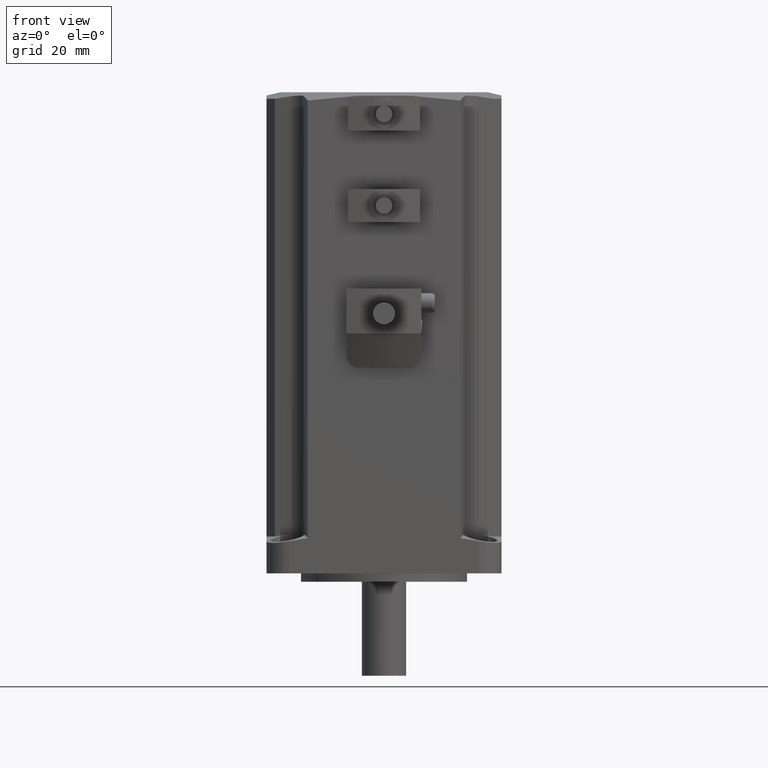
[diagram: clean part render]
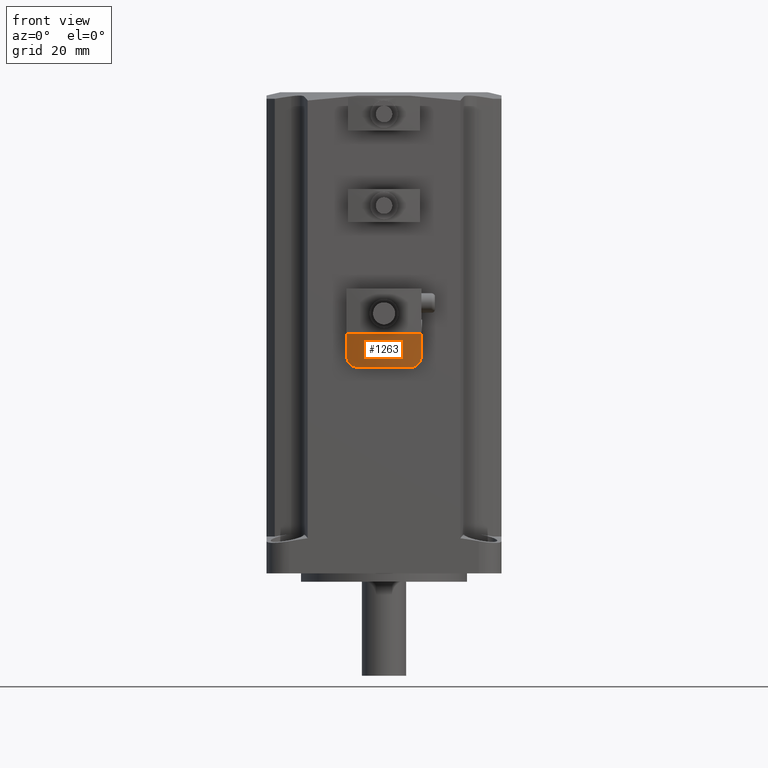
[diagram: same view with one face highlighted and labeled with its STEP entity id]
A machine part, front view. The second image highlights one B-rep face of the part: STEP entity #1263.
In plain terms, the highlighted face is a freeform B-spline surface patch.
Its self-contained STEP definition (entity closure, byte-faithful):
#14 = ORIENTED_EDGE ( 'NONE', *, *, #50, .T. ) ;
#50 = EDGE_CURVE ( 'NONE', #3740, #3743, #2198, .T. ) ;
#103 = CARTESIAN_POINT ( 'NONE',  ( -9.500000000006677325, -46.74314306314172995, 74.50000000000000000 ) ) ;
#172 = VERTEX_POINT ( 'NONE', #2562 ) ;
#205 = CARTESIAN_POINT ( 'NONE',  ( -3.136720277832197201, -47.43923013271023592, 74.50000000000001421 ) ) ;
#228 = CARTESIAN_POINT ( 'NONE',  ( 1.541976423090495042E-15, 6.499999999999964473, 86.79999999999999716 ) ) ;
#259 = CARTESIAN_POINT ( 'NONE',  ( 13.50000000000000533, -47.91274532191039270, 78.50000000000000000 ) ) ;
#287 = CARTESIAN_POINT ( 'NONE',  ( -11.56968906130091668, -46.65075489001505105, 75.06656721014613254 ) ) ;
#309 = ORIENTED_EDGE ( 'NONE', *, *, #5118, .F. ) ;
#310 = CARTESIAN_POINT ( 'NONE',  ( 13.31877589141399554, -47.36051120082587573, 77.28257795042486578 ) ) ;
#350 = CARTESIAN_POINT ( 'NONE',  ( 9.500000000007661427, -46.74314306314155942, 74.49999999999998579 ) ) ;
#354 = FACE_OUTER_BOUND ( 'NONE', #1605, .T. ) ;
#562 = CARTESIAN_POINT ( 'NONE',  ( 13.47761387306214154, -47.67920100482305656, 78.01060841932515189 ) ) ;
#614 = CARTESIAN_POINT ( 'NONE',  ( -13.50000000000001776, -47.91274532191039270, 78.50000000000001421 ) ) ;
#622 = CARTESIAN_POINT ( 'NONE',  ( -9.500000000006677325, -46.74314306314172995, 74.50000000000000000 ) ) ;
#700 = CARTESIAN_POINT ( 'NONE',  ( -12.57407285787557427, -46.86882962501639582, 75.93730667199564266 ) ) ;
#993 = CARTESIAN_POINT ( 'NONE',  ( 13.50000000000000533, -31.25635014758172758, 44.35438989262621590 ) ) ;
#1152 = CARTESIAN_POINT ( 'NONE',  ( -12.48655367297762986, -46.83800249662009207, 75.83576387625799953 ) ) ;
#1155 = VERTEX_POINT ( 'NONE', #614 ) ;
#1242 = CARTESIAN_POINT ( 'NONE',  ( 10.56516640431867415, -46.62896019339163445, 74.63502578148074917 ) ) ;
#1263 = ADVANCED_FACE ( 'NONE', ( #354 ), #2698, .F. ) ;
#1308 = CARTESIAN_POINT ( 'NONE',  ( 3.205371691824343117, -47.49807948093936005, 74.49999999999997158 ) ) ;
#1410 = DIRECTION ( 'NONE',  ( 1.000000000000000000, 0.0000000000000000000, 0.0000000000000000000 ) ) ;
#1419 = CARTESIAN_POINT ( 'NONE',  ( 13.01765801228201802, -47.08471816124341558, 76.57814321692605120 ) ) ;
#1432 = EDGE_CURVE ( 'NONE', #3743, #3658, #3634, .T. ) ;
#1437 = B_SPLINE_CURVE_WITH_KNOTS ( 'NONE', 3,
 ( #350, #3251, #4883, #1242, #2857, #4961, #2056, #2886, #2181, #5031, #4633, #1419, #3606, #310, #4920, #562, #2173, #4728 ),
 .UNSPECIFIED., .F., .F.,
 ( 4, 2, 2, 2, 2, 2, 2, 2, 4 ),
 ( 7.830427440917827224E-15, 0.0008094317095591766018, 0.001618863419110522662, 0.002428295128661868939, 0.003237726838213215216, 0.004047158547764561493, 0.004856590257315907336, 0.005666021966867254046, 0.006475453676418599890 ),
 .UNSPECIFIED. ) ;
#1539 = CARTESIAN_POINT ( 'NONE',  ( -12.81066511392275409, -46.97082892102598350, 76.25141310991959642 ) ) ;
#1605 = EDGE_LOOP ( 'NONE', ( #309, #3018, #4200, #3709, #14, #1956 ) ) ;
#1607 = CARTESIAN_POINT ( 'NONE',  ( 4.578261524350970113, -48.02174349567321343, 74.49999999999998579 ) ) ;
#1702 = CARTESIAN_POINT ( 'NONE',  ( -1.548455948475026211, -47.50094392129680188, 74.50000000000001421 ) ) ;
#1782 = VERTEX_POINT ( 'NONE', #4517 ) ;
#1806 = CARTESIAN_POINT ( 'NONE',  ( -6.320731623465448479, -47.18750853191549766, 74.50000000000001421 ) ) ;
#1838 = CARTESIAN_POINT ( 'NONE',  ( -12.00993820368009324, -46.71246265541533660, 75.37393478209116893 ) ) ;
#1864 = CARTESIAN_POINT ( 'NONE',  ( -13.47759624007209744, -47.67910057881123009, 78.01039413446812887 ) ) ;
#1955 = CARTESIAN_POINT ( 'NONE',  ( 13.50000000000000000, -51.96152580971528323, 86.80000000000001137 ) ) ;
#1956 = ORIENTED_EDGE ( 'NONE', *, *, #1432, .T. ) ;
#2056 = CARTESIAN_POINT ( 'NONE',  ( 11.56099622106447811, -46.64981213963763906, 75.06111250106494026 ) ) ;
#2173 = CARTESIAN_POINT ( 'NONE',  ( 13.49999999999999822, -47.79305665584922025, 78.25463823457454282 ) ) ;
#2181 = CARTESIAN_POINT ( 'NONE',  ( 12.20976696774798498, -46.75499739075451799, 75.54581809630548150 ) ) ;
#2198 = LINE ( 'NONE', #993, #3726 ) ;
#2250 = DIRECTION ( 'NONE',  ( -0.0000000000000000000, -0.0000000000000000000, -1.000000000000000000 ) ) ;
#2301 = B_SPLINE_CURVE_WITH_KNOTS ( 'NONE', 3,
 ( #3824, #4144, #1308, #1702, #205, #1806, #3424, #103 ),
 .UNSPECIFIED., .F., .F.,
 ( 4, 2, 2, 4 ),
 ( 0.004038723917546238780, 0.01353058257738122896, 0.01827651190729872449, 0.02302244123721622002 ),
 .UNSPECIFIED. ) ;
#2305 = EDGE_CURVE ( 'NONE', #1782, #3740, #1437, .T. ) ;
#2330 = CARTESIAN_POINT ( 'NONE',  ( 4.578261524350970113, -54.02174349567322764, 86.80000000000001137 ) ) ;
#2562 = CARTESIAN_POINT ( 'NONE',  ( -9.500000000006677325, -46.74314306314172995, 74.50000000000000000 ) ) ;
#2692 = CARTESIAN_POINT ( 'NONE',  ( -13.13277915517903160, -47.17030382233426877, 76.80648506503477790 ) ) ;
#2698 =( BOUNDED_SURFACE ( )  B_SPLINE_SURFACE ( 3, 1, ( 
 ( #4053, #1955 ),
 ( #1607, #2330 ),
 ( #3579, #3148 ),
 ( #2806, #3223 ) ),
 .UNSPECIFIED., .F., .F., .F. ) 
 B_SPLINE_SURFACE_WITH_KNOTS ( ( 4, 4 ),
 ( 2, 2 ),
 ( 0.0000000000000000000, 1.000000000000000000 ),
 ( 0.0000000000000000000, 1.000000000000000000 ),
 .UNSPECIFIED. ) 
 GEOMETRIC_REPRESENTATION_ITEM ( )  RATIONAL_B_SPLINE_SURFACE ( (
 ( 1.000000000000000000, 1.000000000000000000),
 ( 0.9829058423301690883, 0.9829058423301690883),
 ( 0.9829058423301690883, 0.9829058423301690883),
 ( 1.000000000000000000, 1.000000000000000000) ) ) 
 REPRESENTATION_ITEM ( '' )  SURFACE ( )  );
#2716 = CARTESIAN_POINT ( 'NONE',  ( -10.57450776104491652, -46.62843994265197978, 74.63735262351630695 ) ) ;
#2767 = CARTESIAN_POINT ( 'NONE',  ( -13.50000000000001776, -31.25635014758172758, 44.35438989262621590 ) ) ;
#2768 = CARTESIAN_POINT ( 'NONE',  ( -12.21145294074679022, -46.75535421508258338, 75.54726384371598158 ) ) ;
#2806 = CARTESIAN_POINT ( 'NONE',  ( -13.50000000000001599, -45.96152580971526902, 74.49999999999998579 ) ) ;
#2857 = CARTESIAN_POINT ( 'NONE',  ( 10.82867431691808413, -46.62135916853029016, 74.71745564410952056 ) ) ;
#2886 = CARTESIAN_POINT ( 'NONE',  ( 12.00661042317840455, -46.71172787161095385, 75.37101344841703110 ) ) ;
#3018 = ORIENTED_EDGE ( 'NONE', *, *, #3768, .T. ) ;
#3035 = CARTESIAN_POINT ( 'NONE',  ( -13.50000000000001776, -51.96152580971526191, 86.79999999999999716 ) ) ;
#3088 = CARTESIAN_POINT ( 'NONE',  ( -11.32865264113721260, -46.63219257540016827, 74.93222928183794807 ) ) ;
#3148 = CARTESIAN_POINT ( 'NONE',  ( -4.578261524350985212, -54.02174349567323475, 86.80000000000001137 ) ) ;
#3154 = CARTESIAN_POINT ( 'NONE',  ( -13.38716404178432740, -47.46301636351225284, 77.52483772383368432 ) ) ;
#3223 = CARTESIAN_POINT ( 'NONE',  ( -13.50000000000001599, -51.96152580971528323, 86.80000000000001137 ) ) ;
#3251 = CARTESIAN_POINT ( 'NONE',  ( 9.770133014376988001, -46.69982558361991209, 74.50000000000038369 ) ) ;
#3296 = AXIS2_PLACEMENT_3D ( 'NONE', #228, #2250, #1410 ) ;
#3415 = VECTOR ( 'NONE', #4385, 1000.000000000000114 ) ;
#3424 = CARTESIAN_POINT ( 'NONE',  ( -7.918103306390242402, -46.99680986426587026, 74.50000000000001421 ) ) ;
#3442 = B_SPLINE_CURVE_WITH_KNOTS ( 'NONE', 3,
 ( #3879, #5179, #1864, #3154, #3484, #2692, #5107, #1539, #4790, #700, #1152, #2768, #1838, #287, #3088, #4711, #2716, #4337, #5151, #622 ),
 .UNSPECIFIED., .F., .F.,
 ( 4, 2, 2, 2, 2, 2, 2, 2, 2, 4 ),
 ( 1.561251128379126385E-17, 0.0008086161761526238032, 0.001617232352305231994, 0.002425848528457840401, 0.002830156616534126174, 0.003234464704610411946, 0.004043080880762950531, 0.004851697056915489116, 0.005660313233068027701, 0.006468929409220565419 ),
 .UNSPECIFIED. ) ;
#3484 = CARTESIAN_POINT ( 'NONE',  ( -13.31848228831807823, -47.36014666968779352, 77.28169370064230748 ) ) ;
#3579 = CARTESIAN_POINT ( 'NONE',  ( -4.578261524350985212, -48.02174349567322054, 74.49999999999998579 ) ) ;
#3606 = CARTESIAN_POINT ( 'NONE',  ( 13.13303648534986579, -47.17050269656781580, 76.80701103023284304 ) ) ;
#3634 = CIRCLE ( 'NONE', #3296, 60.00000000000000000 ) ;
#3658 = VERTEX_POINT ( 'NONE', #3035 ) ;
#3709 = ORIENTED_EDGE ( 'NONE', *, *, #2305, .T. ) ;
#3726 = VECTOR ( 'NONE', #3793, 1000.000000000000114 ) ;
#3740 = VERTEX_POINT ( 'NONE', #259 ) ;
#3743 = VERTEX_POINT ( 'NONE', #3956 ) ;
#3768 = EDGE_CURVE ( 'NONE', #1155, #172, #3442, .T. ) ;
#3793 = DIRECTION ( 'NONE',  ( -0.0000000000000000000, -0.4384236320214142668, 0.8987684456438996827 ) ) ;
#3824 = CARTESIAN_POINT ( 'NONE',  ( 9.500000000007661427, -46.74314306314155942, 74.49999999999998579 ) ) ;
#3879 = CARTESIAN_POINT ( 'NONE',  ( -13.50000000000001776, -47.91274532191039270, 78.50000000000001421 ) ) ;
#3956 = CARTESIAN_POINT ( 'NONE',  ( 13.50000000000000533, -51.96152580971526191, 86.79999999999999716 ) ) ;
#4053 = CARTESIAN_POINT ( 'NONE',  ( 13.50000000000000000, -45.96152580971526902, 74.49999999999998579 ) ) ;
#4079 = EDGE_CURVE ( 'NONE', #1782, #172, #2301, .T. ) ;
#4144 = CARTESIAN_POINT ( 'NONE',  ( 6.360037301111252539, -47.24665526889588563, 74.49999999999998579 ) ) ;
#4200 = ORIENTED_EDGE ( 'NONE', *, *, #4079, .F. ) ;
#4337 = CARTESIAN_POINT ( 'NONE',  ( -10.03943780515329465, -46.66798038677580251, 74.52713975353101716 ) ) ;
#4385 = DIRECTION ( 'NONE',  ( -0.0000000000000000000, -0.4384236320214142668, 0.8987684456438996827 ) ) ;
#4517 = CARTESIAN_POINT ( 'NONE',  ( 9.500000000007661427, -46.74314306314155942, 74.49999999999998579 ) ) ;
#4633 = CARTESIAN_POINT ( 'NONE',  ( 12.73960474004387855, -46.93180580783266720, 76.13940420353152660 ) ) ;
#4711 = CARTESIAN_POINT ( 'NONE',  ( -10.83239671236207080, -46.62131778728757325, 74.71877303244048107 ) ) ;
#4728 = CARTESIAN_POINT ( 'NONE',  ( 13.50000000000000533, -47.91274532191039270, 78.50000000000000000 ) ) ;
#4790 = CARTESIAN_POINT ( 'NONE',  ( -12.73587916913781548, -46.93519089707701397, 76.14491889063980068 ) ) ;
#4883 = CARTESIAN_POINT ( 'NONE',  ( 10.03717985991707451, -46.66832107594783707, 74.52708633660297721 ) ) ;
#4920 = CARTESIAN_POINT ( 'NONE',  ( 13.38727625436606772, -47.46322628214250017, 77.52532078884716782 ) ) ;
#4961 = CARTESIAN_POINT ( 'NONE',  ( 11.32533470716787249, -46.63199864573491027, 74.93052238394396625 ) ) ;
#5031 = CARTESIAN_POINT ( 'NONE',  ( 12.57532611377687992, -46.86452451348571913, 75.92854184682383334 ) ) ;
#5107 = CARTESIAN_POINT ( 'NONE',  ( -13.01770312298411447, -47.08485576993627575, 76.57845095464760732 ) ) ;
#5118 = EDGE_CURVE ( 'NONE', #1155, #3658, #5178, .T. ) ;
#5151 = CARTESIAN_POINT ( 'NONE',  ( -9.770436377366912950, -46.69977693750954018, 74.49999999999998579 ) ) ;
#5178 = LINE ( 'NONE', #2767, #3415 ) ;
#5179 = CARTESIAN_POINT ( 'NONE',  ( -13.50000000000000711, -47.79300889309675426, 78.25454032093199430 ) ) ;